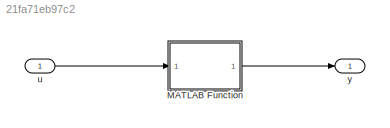
MODEL slx_21fa71eb97c2
KIND model
CONFIG AbsTol = auto
CONFIG EnableMultiTasking = off
CONFIG FixedStep = auto
CONFIG MaxStep = auto
CONFIG MinStep = auto
CONFIG RelTol = 1e-3
CONFIG SampleTimeConstraint = Unconstrained
CONFIG SolverName = VariableStepAuto
CONFIG StartTime = 0.0
CONFIG StopTime = 10.0
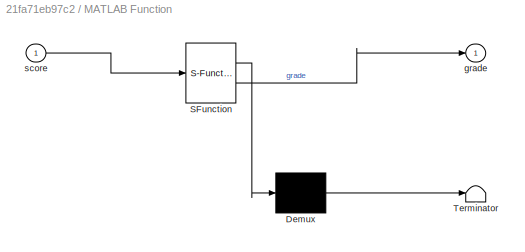
BLOCK [SubSystem] MATLAB Function
  ErrorFcn = Stateflow.Translate.translate
  PermitHierarchicalResolution = ExplicitOnly
  Ports = [1, 1]
  RequestExecContextInheritance = off
  SFBlockType = MATLAB Function
  TreatAsAtomicUnit = on
BLOCK [Demux] MATLAB Function/ Demux 
  Outputs = 1
  Ports = [1, 1]
BLOCK [S-Function] MATLAB Function/ SFunction 
  EnableBusSupport = on
  FunctionName = sf_sfun
  PortCounts = [1 2]
  Ports = [1, 2]
  SFcnIsStateOwnerBlock = off
  SFunctionDeploymentMode = off
  Tag = Stateflow S-Function 2
BLOCK [Terminator] MATLAB Function/ Terminator 
BLOCK [Outport] MATLAB Function/grade
BLOCK [Inport] MATLAB Function/score
BLOCK [Inport] u
BLOCK [Outport] y
LINE MATLAB Function:1 -> y:1
LINE u:1 -> MATLAB Function:1
CHART MATLAB Function states=1 transitions=1
  STATE_LABEL 'eML_blk_kernel()'
  STATE_LABEL 'SCRIPT:\nfunction grade = gradingSystem(score)\n    % Check if the input score is within a valid range\n    if score < 0 || score > 100\n        error("Invalid score. Please enter a score between 0 and 100.");\n    end\n    \n    % Define grade boundaries\n    if score >= 90\n        grade = "A";\n    elseif score >= 80\n        grade = "B";\n    elseif score >= 70\n        grade = "C";\n    elseif score >= 60\n...<+62ch>'
CHART  states=0 transitions=0
